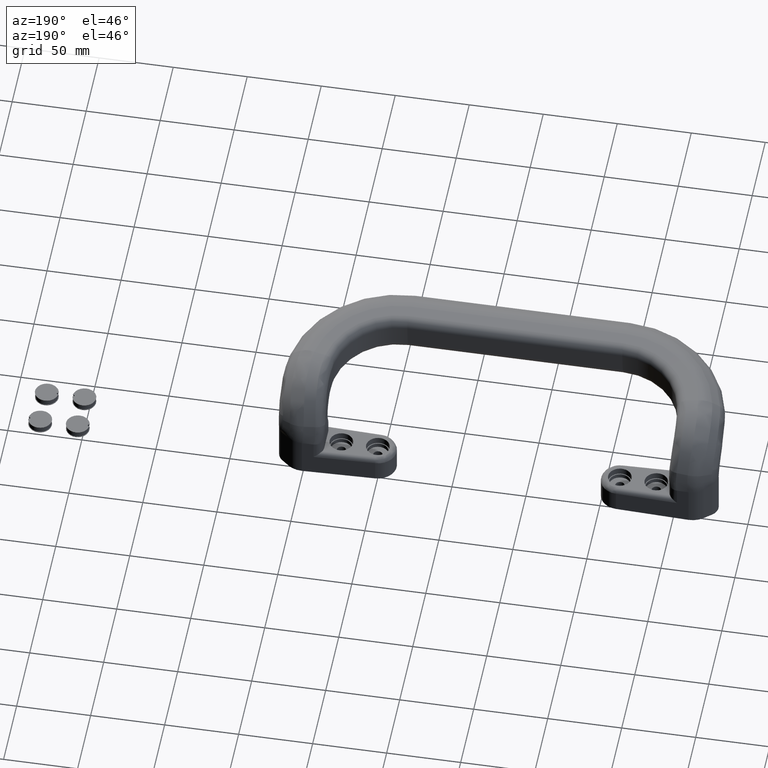
[diagram: clean part render]
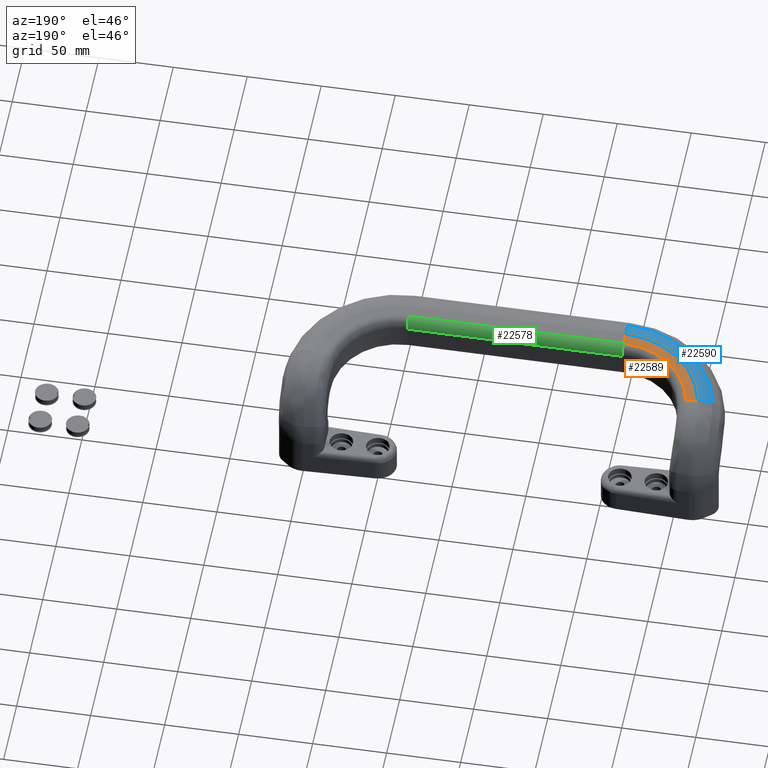
[diagram: same view with three faces highlighted in distinct colors, each labeled with its STEP entity id]
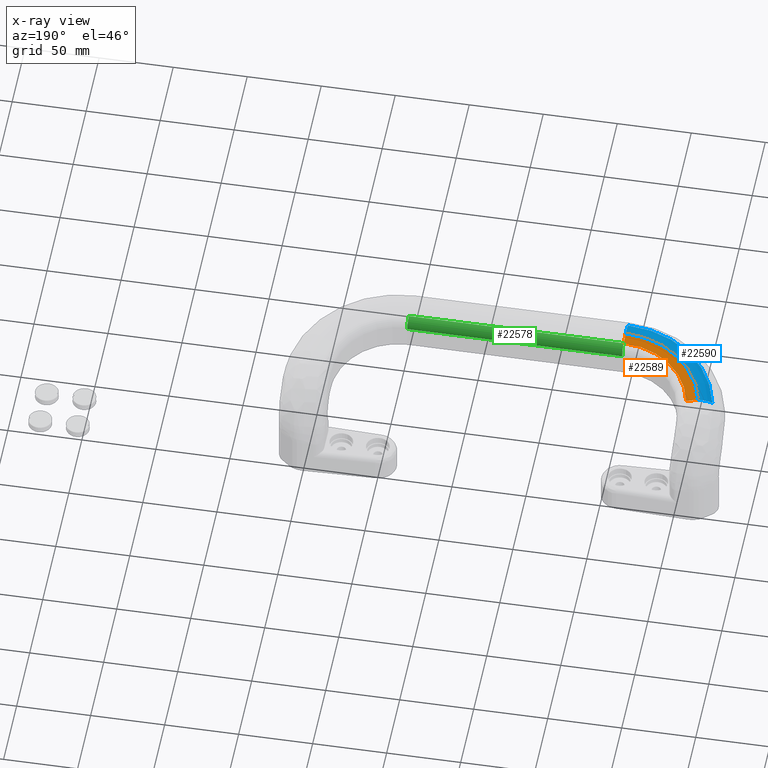
[diagram: x-ray of the same camera — body ghosted, the three highlighted faces saturated]
A machine part, auxiliary view with three faces highlighted in distinct colors.
The next image is the same camera in x-ray (body ghosted, the three faces saturated) — at least one of them is partly hidden behind the body in this view.
Their STEP definitions:

[orange] entity #22589 — the highlighted conical surface has half-angle 88.152 deg.
#276=CONICAL_SURFACE('',#23952,1.97692509008,1.53854940249);
#2369=FACE_OUTER_BOUND('',#3771,.T.);
#3771=EDGE_LOOP('',(#15735,#15736,#15737,#15738));
#5470=LINE('',#36265,#6743);
#5480=LINE('',#36305,#6753);
#6743=VECTOR('',#27238,0.00155000310000855);
#6753=VECTOR('',#27288,0.0015500031000092);
#7424=CIRCLE('',#23951,1.97692184452);
#7425=CIRCLE('',#23953,2.28185486273);
#9134=VERTEX_POINT('',#36260);
#9135=VERTEX_POINT('',#36264);
#9144=VERTEX_POINT('',#36300);
#9145=VERTEX_POINT('',#36304);
#11466=EDGE_CURVE('',#9134,#9135,#5470,.T.);
#11485=EDGE_CURVE('',#9134,#9144,#7424,.T.);
#11486=EDGE_CURVE('',#9144,#9145,#5480,.T.);
#11487=EDGE_CURVE('',#9135,#9145,#7425,.F.);
#15735=ORIENTED_EDGE('',*,*,#11466,.F.);
#15736=ORIENTED_EDGE('',*,*,#11485,.T.);
#15737=ORIENTED_EDGE('',*,*,#11486,.T.);
#15738=ORIENTED_EDGE('',*,*,#11487,.F.);
#22589=ADVANCED_FACE('',(#2369),#276,.F.);
#23951=AXIS2_PLACEMENT_3D('',#36302,#27284,#27285);
#23952=AXIS2_PLACEMENT_3D('',#36303,#27286,#27287);
#23953=AXIS2_PLACEMENT_3D('',#36306,#27289,#27290);
#27238=DIRECTION('',(0.,-0.988319878265691,0.15239362921359));
#27284=DIRECTION('center_axis',(-4.13987341427145E-17,-0.120449648613414,
-0.992719437781343));
#27285=DIRECTION('ref_axis',(1.,0.,-4.17023507016622E-17));
#27286=DIRECTION('center_axis',(1.13756907733994E-13,0.120449648613414,
0.992719437781343));
#27287=DIRECTION('ref_axis',(-0.982007002036068,-0.187469613153719,0.0227462545516747));
#27288=DIRECTION('',(-0.9814964693518,-0.183488692561475,0.0547410298773391));
#27289=DIRECTION('center_axis',(1.13756907733994E-13,0.120449648613414,
0.992719437781343));
#27290=DIRECTION('ref_axis',(-1.,0.,1.14591196066667E-13));
#36260=CARTESIAN_POINT('',(-6.0775,-2.61274048700335,3.0094401928252));
#36264=CARTESIAN_POINT('',(-6.0775,-2.91426861554882,3.05593416153594));
#36265=CARTESIAN_POINT('',(-6.0775,-2.76350615831,3.03268739851));
#36300=CARTESIAN_POINT('',(-8.01885428819719,-1.02082422199347,2.81629570877704));
#36302=CARTESIAN_POINT('Origin',(-6.0775,-0.65021173701,2.77132070303));
#36303=CARTESIAN_POINT('Origin',(-6.0775,-0.65021173701,2.77132070303));
#36304=CARTESIAN_POINT('',(-8.31829745345775,-1.07680538645822,2.83298919653151));
#36305=CARTESIAN_POINT('',(-8.1685758669,-1.04881525324,2.82463877053));
#36306=CARTESIAN_POINT('Origin',(-6.0775,-0.649026939213,2.78108554515));

[blue] entity #22590 — the highlighted toroidal blend (fillet) surface has major radius 58.4194 mm and minor (blend) radius 14.2876 mm.
#46=TOROIDAL_SURFACE('',#23954,2.29997571318,0.562504297405);
#2370=FACE_OUTER_BOUND('',#3772,.T.);
#3772=EDGE_LOOP('',(#15739,#15740,#15741,#15742));
#7415=CIRCLE('',#23934,0.562504297405);
#7425=CIRCLE('',#23953,2.28185486273);
#7426=CIRCLE('',#23955,0.562504297405);
#7427=CIRCLE('',#23956,2.66055713338);
#9135=VERTEX_POINT('',#36264);
#9136=VERTEX_POINT('',#36268);
#9145=VERTEX_POINT('',#36304);
#9146=VERTEX_POINT('',#36308);
#11468=EDGE_CURVE('',#9135,#9136,#7415,.T.);
#11487=EDGE_CURVE('',#9135,#9145,#7425,.F.);
#11488=EDGE_CURVE('',#9145,#9146,#7426,.T.);
#11489=EDGE_CURVE('',#9136,#9146,#7427,.T.);
#15739=ORIENTED_EDGE('',*,*,#11468,.F.);
#15740=ORIENTED_EDGE('',*,*,#11487,.T.);
#15741=ORIENTED_EDGE('',*,*,#11488,.T.);
#15742=ORIENTED_EDGE('',*,*,#11489,.F.);
#22590=ADVANCED_FACE('',(#2370),#46,.T.);
#23934=AXIS2_PLACEMENT_3D('',#36269,#27242,#27243);
#23953=AXIS2_PLACEMENT_3D('',#36306,#27289,#27290);
#23954=AXIS2_PLACEMENT_3D('',#36307,#27291,#27292);
#23955=AXIS2_PLACEMENT_3D('',#36309,#27293,#27294);
#23956=AXIS2_PLACEMENT_3D('',#36310,#27295,#27296);
#27242=DIRECTION('center_axis',(1.,0.,0.));
#27243=DIRECTION('ref_axis',(0.,-1.,0.));
#27289=DIRECTION('center_axis',(1.13756907733994E-13,0.120449648613414,
0.992719437781343));
#27290=DIRECTION('ref_axis',(-1.,0.,1.14591196066667E-13));
#27291=DIRECTION('center_axis',(-4.13987341427145E-17,-0.120449648613414,
-0.992719437781343));
#27292=DIRECTION('ref_axis',(3.10282837405251E-16,-0.992719437781343,0.120449648613414));
#27293=DIRECTION('center_axis',(0.188844507339068,-0.974857438958583,0.118282398331183));
#27294=DIRECTION('ref_axis',(0.,0.120449648613441,0.992719437781339));
#27295=DIRECTION('center_axis',(-4.13987341427145E-17,-0.120449648613414,
-0.992719437781343));
#27296=DIRECTION('ref_axis',(1.,0.,-4.17023507016622E-17));
#36264=CARTESIAN_POINT('',(-6.0775,-2.91426861554882,3.05593416153594));
#36268=CARTESIAN_POINT('',(-6.0775,-3.30592895657726,2.97202721064338));
#36269=CARTESIAN_POINT('Origin',(-6.0775,-2.99997468426,2.50000701208));
#36304=CARTESIAN_POINT('',(-8.31829745345775,-1.07680538645822,2.83298919653151));
#36306=CARTESIAN_POINT('Origin',(-6.0775,-0.649026939213,2.78108554515));
#36307=CARTESIAN_POINT('Origin',(-6.0775,-0.716744087366,2.2229757456));
#36308=CARTESIAN_POINT('',(-8.69018770807,-1.16350620943,2.71208072923));
#36309=CARTESIAN_POINT('Origin',(-8.33609225485,-1.14791964458,2.27529157864));
#36310=CARTESIAN_POINT('Origin',(-6.0775,-0.664742174886,2.65156403885));

[green] entity #22578 — the highlighted cylindrical surface (edge-blend (fillet) strip) has radius 6.3497 mm, axis along (1, 0, 0).
#2358=FACE_OUTER_BOUND('',#3760,.T.);
#3760=EDGE_LOOP('',(#15691,#15692,#15693,#15694));
#5468=LINE('',#36258,#6741);
#5469=LINE('',#36262,#6742);
#6741=VECTOR('',#27230,0.00155000310000955);
#6742=VECTOR('',#27235,0.00155000310000955);
#7403=CIRCLE('',#23910,0.249986563044);
#7414=CIRCLE('',#23931,0.24998656326);
#9123=VERTEX_POINT('',#36216);
#9124=VERTEX_POINT('',#36220);
#9133=VERTEX_POINT('',#36256);
#9134=VERTEX_POINT('',#36260);
#11444=EDGE_CURVE('',#9123,#9124,#7403,.T.);
#11463=EDGE_CURVE('',#9123,#9133,#5468,.T.);
#11464=EDGE_CURVE('',#9133,#9134,#7414,.T.);
#11465=EDGE_CURVE('',#9124,#9134,#5469,.F.);
#15691=ORIENTED_EDGE('',*,*,#11444,.F.);
#15692=ORIENTED_EDGE('',*,*,#11463,.T.);
#15693=ORIENTED_EDGE('',*,*,#11464,.T.);
#15694=ORIENTED_EDGE('',*,*,#11465,.F.);
#20561=CYLINDRICAL_SURFACE('',#23930,0.24998656326);
#22578=ADVANCED_FACE('',(#2358),#20561,.T.);
#23910=AXIS2_PLACEMENT_3D('',#36221,#27182,#27183);
#23930=AXIS2_PLACEMENT_3D('',#36259,#27231,#27232);
#23931=AXIS2_PLACEMENT_3D('',#36261,#27233,#27234);
#27182=DIRECTION('center_axis',(0.999999999993358,-3.61816822625983E-6,
4.39003282144035E-7));
#27183=DIRECTION('ref_axis',(-3.61816822626018E-6,-0.999999999993454,0.));
#27230=DIRECTION('',(-1.,0.,0.));
#27231=DIRECTION('center_axis',(1.,1.02850232543361E-17,8.47273899158845E-17));
#27232=DIRECTION('ref_axis',(-2.45241274659861E-29,0.992712721265627,-0.12050499175301));
#27233=DIRECTION('center_axis',(1.,1.02850232543361E-17,8.47273899158845E-17));
#27234=DIRECTION('ref_axis',(1.02850232543361E-17,-1.,0.));
#27235=DIRECTION('',(1.,0.,9.78543889988783E-17));
#36216=CARTESIAN_POINT('',(-0.360002900871718,-2.40266499955869,2.73224590912934));
#36220=CARTESIAN_POINT('',(-0.360000902776895,-2.6127386258084,3.00944293469687));
#36221=CARTESIAN_POINT('Origin',(-0.360007234645,-2.65082989008,2.76237248365));
#36256=CARTESIAN_POINT('',(-6.0775,-2.40266502102775,2.73224591174458));
#36258=CARTESIAN_POINT('',(-3.21875,-2.40266476114,2.73224588019));
#36259=CARTESIAN_POINT('Origin',(-6.0775,-2.65082989038,2.76237248348));
#36260=CARTESIAN_POINT('',(-6.0775,-2.61274048700335,3.0094401928252));
#36261=CARTESIAN_POINT('Origin',(-6.0775,-2.65082989038,2.76237248348));
#36262=CARTESIAN_POINT('',(-3.21875,-2.61274047903,3.00944024453));